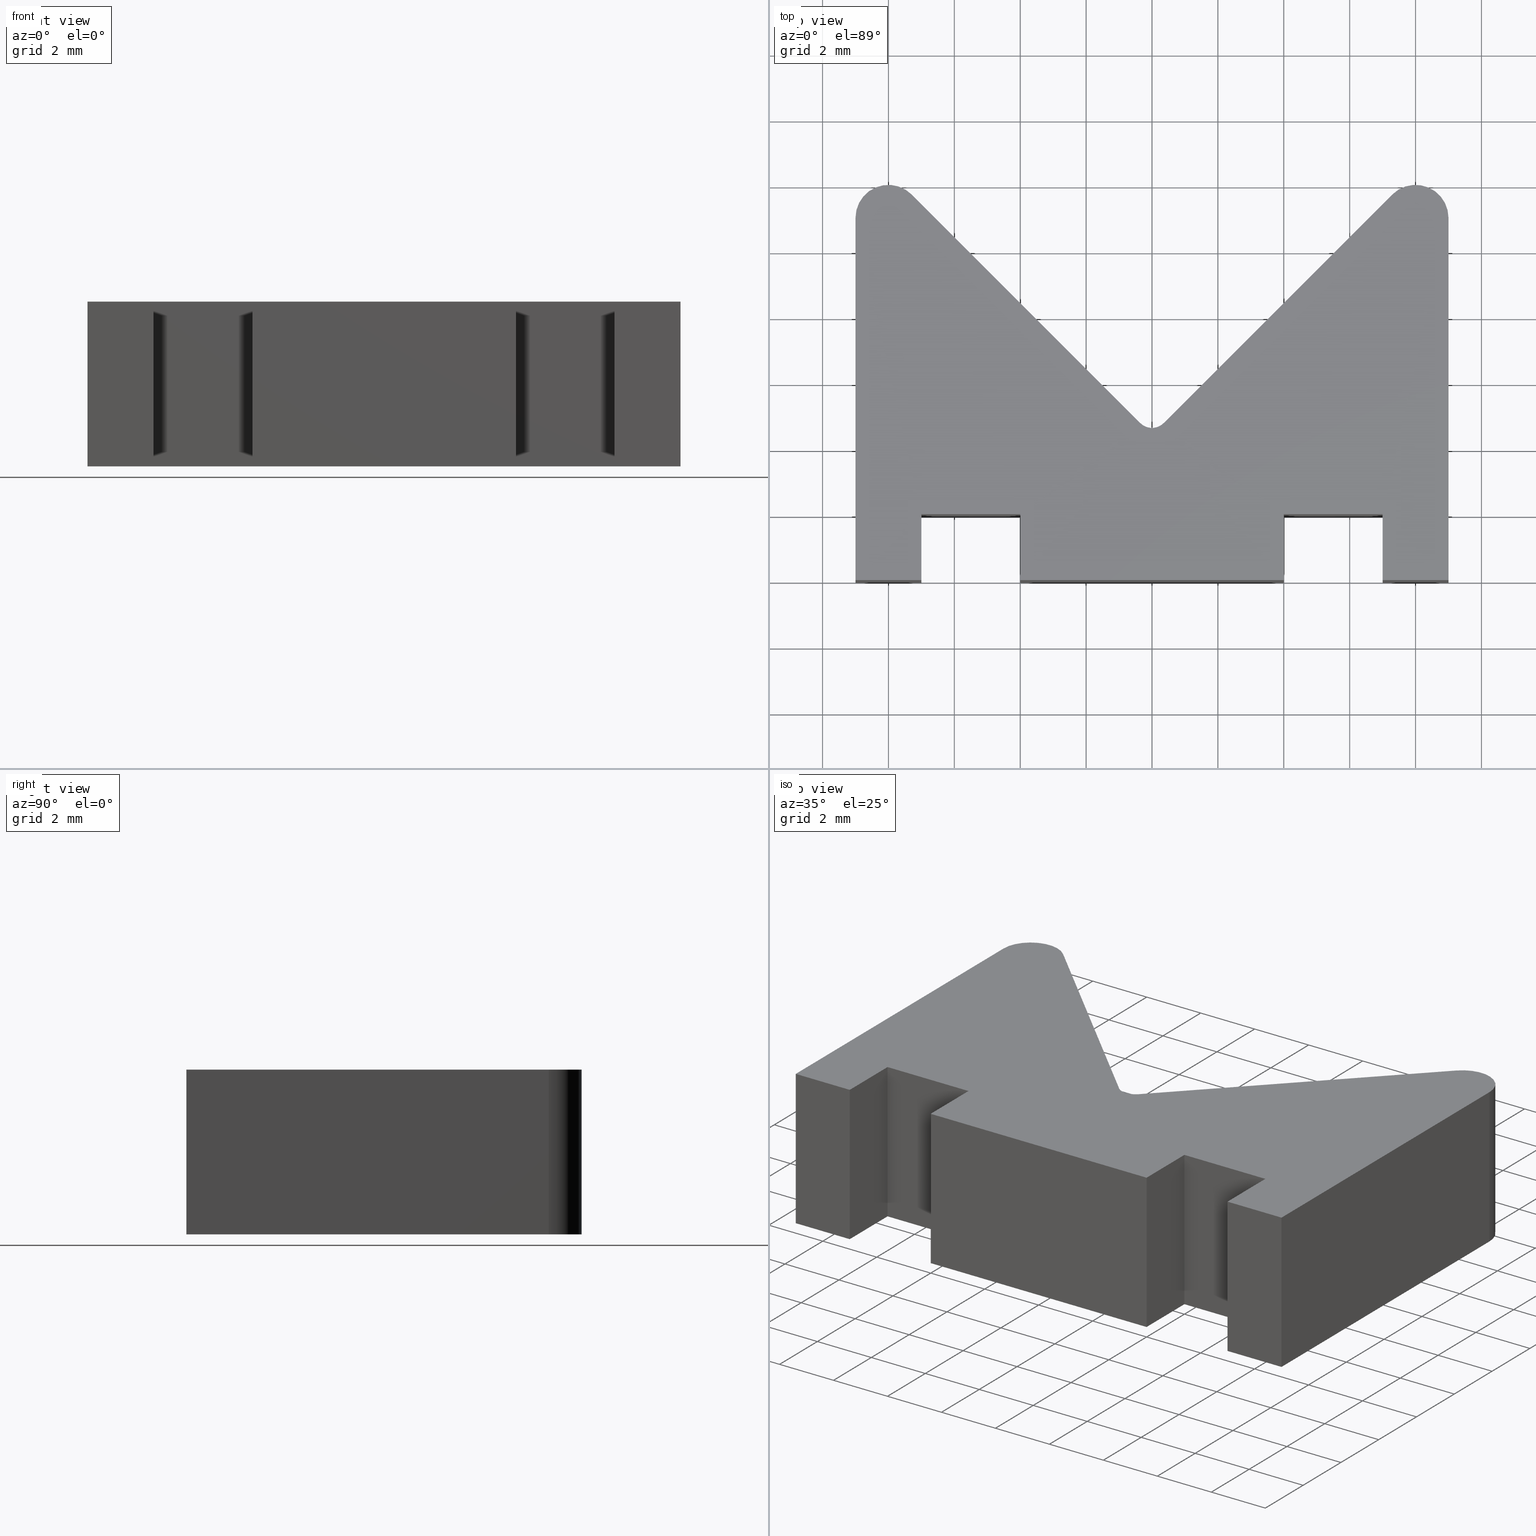
[diagram: canonical four-view strip — front | top / right | iso, engineering-drawing reading convention]
A machine part, canonical four-view strip (front | top / right | iso — engineering-drawing reading convention). The complete STEP part file that produces these views, byte-faithful:
ISO-10303-21;
HEADER;
/* Generated by software containing ST-Developer
 * from STEP Tools, Inc. (www.steptools.com) 
 */

FILE_DESCRIPTION(
/* description */ (''),
/* implementation_level */ '2;1');

FILE_NAME(
/* name */ 'E_3_01_10_18_00_WKZ-0098.stp',
/* time_stamp */ '2025-11-24T11:32:34+01:00',
/* author */ ('d.fischer'),
/* organization */ (''),
/* preprocessor_version */ 'ST-DEVELOPER v20',
/* originating_system */ 'Autodesk Inventor 2025',
/* authorisation */ '');

FILE_SCHEMA (('AUTOMOTIVE_DESIGN { 1 0 10303 214 3 1 1 }'));
ENDSEC;

DATA;
#10=MECHANICAL_DESIGN_GEOMETRIC_PRESENTATION_REPRESENTATION('',(#17,#18),
#595);
#11=SHAPE_REPRESENTATION_RELATIONSHIP('SRR','None',#602,#12);
#12=ADVANCED_BREP_SHAPE_REPRESENTATION('',(#13),#594);
#13=MANIFOLD_SOLID_BREP('Volumenk\X\F6rper1',#354);
#14=CYLINDRICAL_SURFACE('',#390,1.);
#15=CYLINDRICAL_SURFACE('',#393,0.500000000000001);
#16=CYLINDRICAL_SURFACE('',#396,1.);
#17=STYLED_ITEM('',(#612),#340);
#18=STYLED_ITEM('',(#611),#13);
#19=FACE_OUTER_BOUND('',#37,.T.);
#20=FACE_OUTER_BOUND('',#38,.T.);
#21=FACE_OUTER_BOUND('',#39,.T.);
#22=FACE_OUTER_BOUND('',#40,.T.);
#23=FACE_OUTER_BOUND('',#41,.T.);
#24=FACE_OUTER_BOUND('',#42,.T.);
#25=FACE_OUTER_BOUND('',#43,.T.);
#26=FACE_OUTER_BOUND('',#44,.T.);
#27=FACE_OUTER_BOUND('',#45,.T.);
#28=FACE_OUTER_BOUND('',#46,.T.);
#29=FACE_OUTER_BOUND('',#47,.T.);
#30=FACE_OUTER_BOUND('',#48,.T.);
#31=FACE_OUTER_BOUND('',#49,.T.);
#32=FACE_OUTER_BOUND('',#50,.T.);
#33=FACE_OUTER_BOUND('',#51,.T.);
#34=FACE_OUTER_BOUND('',#52,.T.);
#35=FACE_OUTER_BOUND('',#53,.T.);
#36=FACE_OUTER_BOUND('',#54,.T.);
#37=EDGE_LOOP('',(#225,#226,#227,#228,#229,#230,#231,#232,#233,#234,#235,
#236,#237,#238,#239,#240));
#38=EDGE_LOOP('',(#241,#242,#243,#244));
#39=EDGE_LOOP('',(#245,#246,#247,#248));
#40=EDGE_LOOP('',(#249,#250,#251,#252));
#41=EDGE_LOOP('',(#253,#254,#255,#256));
#42=EDGE_LOOP('',(#257,#258,#259,#260));
#43=EDGE_LOOP('',(#261,#262,#263,#264));
#44=EDGE_LOOP('',(#265,#266,#267,#268));
#45=EDGE_LOOP('',(#269,#270,#271,#272));
#46=EDGE_LOOP('',(#273,#274,#275,#276));
#47=EDGE_LOOP('',(#277,#278,#279,#280));
#48=EDGE_LOOP('',(#281,#282,#283,#284));
#49=EDGE_LOOP('',(#285,#286,#287,#288));
#50=EDGE_LOOP('',(#289,#290,#291,#292));
#51=EDGE_LOOP('',(#293,#294,#295,#296));
#52=EDGE_LOOP('',(#297,#298,#299,#300));
#53=EDGE_LOOP('',(#301,#302,#303,#304));
#54=EDGE_LOOP('',(#305,#306,#307,#308,#309,#310,#311,#312,#313,#314,#315,
#316,#317,#318,#319,#320));
#55=CIRCLE('',#378,1.);
#56=CIRCLE('',#379,0.500000000000001);
#57=CIRCLE('',#380,1.);
#58=CIRCLE('',#391,1.);
#59=CIRCLE('',#394,0.500000000000001);
#60=CIRCLE('',#397,1.);
#61=LINE('',#497,#103);
#62=LINE('',#499,#104);
#63=LINE('',#501,#105);
#64=LINE('',#503,#106);
#65=LINE('',#505,#107);
#66=LINE('',#507,#108);
#67=LINE('',#509,#109);
#68=LINE('',#511,#110);
#69=LINE('',#513,#111);
#70=LINE('',#515,#112);
#71=LINE('',#517,#113);
#72=LINE('',#521,#114);
#73=LINE('',#525,#115);
#74=LINE('',#530,#116);
#75=LINE('',#531,#117);
#76=LINE('',#532,#118);
#77=LINE('',#535,#119);
#78=LINE('',#536,#120);
#79=LINE('',#539,#121);
#80=LINE('',#540,#122);
#81=LINE('',#543,#123);
#82=LINE('',#544,#124);
#83=LINE('',#547,#125);
#84=LINE('',#548,#126);
#85=LINE('',#551,#127);
#86=LINE('',#552,#128);
#87=LINE('',#555,#129);
#88=LINE('',#556,#130);
#89=LINE('',#559,#131);
#90=LINE('',#560,#132);
#91=LINE('',#563,#133);
#92=LINE('',#564,#134);
#93=LINE('',#568,#135);
#94=LINE('',#571,#136);
#95=LINE('',#572,#137);
#96=LINE('',#576,#138);
#97=LINE('',#579,#139);
#98=LINE('',#580,#140);
#99=LINE('',#584,#141);
#100=LINE('',#587,#142);
#101=LINE('',#588,#143);
#102=LINE('',#590,#144);
#103=VECTOR('',#405,10.);
#104=VECTOR('',#406,10.);
#105=VECTOR('',#407,10.);
#106=VECTOR('',#408,10.);
#107=VECTOR('',#409,10.);
#108=VECTOR('',#410,10.);
#109=VECTOR('',#411,10.);
#110=VECTOR('',#412,10.);
#111=VECTOR('',#413,10.);
#112=VECTOR('',#414,10.);
#113=VECTOR('',#415,10.);
#114=VECTOR('',#418,10.);
#115=VECTOR('',#421,10.);
#116=VECTOR('',#426,10.);
#117=VECTOR('',#427,10.);
#118=VECTOR('',#428,10.);
#119=VECTOR('',#431,10.);
#120=VECTOR('',#432,10.);
#121=VECTOR('',#435,10.);
#122=VECTOR('',#436,10.);
#123=VECTOR('',#439,10.);
#124=VECTOR('',#440,10.);
#125=VECTOR('',#443,10.);
#126=VECTOR('',#444,10.);
#127=VECTOR('',#447,10.);
#128=VECTOR('',#448,10.);
#129=VECTOR('',#451,10.);
#130=VECTOR('',#452,10.);
#131=VECTOR('',#455,10.);
#132=VECTOR('',#456,10.);
#133=VECTOR('',#459,10.);
#134=VECTOR('',#460,10.);
#135=VECTOR('',#465,10.);
#136=VECTOR('',#468,10.);
#137=VECTOR('',#469,10.);
#138=VECTOR('',#474,10.);
#139=VECTOR('',#477,10.);
#140=VECTOR('',#478,10.);
#141=VECTOR('',#483,10.);
#142=VECTOR('',#486,10.);
#143=VECTOR('',#487,10.);
#144=VECTOR('',#490,10.);
#145=VERTEX_POINT('',#495);
#146=VERTEX_POINT('',#496);
#147=VERTEX_POINT('',#498);
#148=VERTEX_POINT('',#500);
#149=VERTEX_POINT('',#502);
#150=VERTEX_POINT('',#504);
#151=VERTEX_POINT('',#506);
#152=VERTEX_POINT('',#508);
#153=VERTEX_POINT('',#510);
#154=VERTEX_POINT('',#512);
#155=VERTEX_POINT('',#514);
#156=VERTEX_POINT('',#516);
#157=VERTEX_POINT('',#518);
#158=VERTEX_POINT('',#520);
#159=VERTEX_POINT('',#522);
#160=VERTEX_POINT('',#524);
#161=VERTEX_POINT('',#528);
#162=VERTEX_POINT('',#529);
#163=VERTEX_POINT('',#534);
#164=VERTEX_POINT('',#538);
#165=VERTEX_POINT('',#542);
#166=VERTEX_POINT('',#546);
#167=VERTEX_POINT('',#550);
#168=VERTEX_POINT('',#554);
#169=VERTEX_POINT('',#558);
#170=VERTEX_POINT('',#562);
#171=VERTEX_POINT('',#566);
#172=VERTEX_POINT('',#570);
#173=VERTEX_POINT('',#574);
#174=VERTEX_POINT('',#578);
#175=VERTEX_POINT('',#582);
#176=VERTEX_POINT('',#586);
#177=EDGE_CURVE('',#145,#146,#61,.T.);
#178=EDGE_CURVE('',#147,#145,#62,.T.);
#179=EDGE_CURVE('',#148,#147,#63,.T.);
#180=EDGE_CURVE('',#149,#148,#64,.T.);
#181=EDGE_CURVE('',#150,#149,#65,.T.);
#182=EDGE_CURVE('',#151,#150,#66,.T.);
#183=EDGE_CURVE('',#152,#151,#67,.T.);
#184=EDGE_CURVE('',#153,#152,#68,.T.);
#185=EDGE_CURVE('',#154,#153,#69,.T.);
#186=EDGE_CURVE('',#155,#154,#70,.T.);
#187=EDGE_CURVE('',#156,#155,#71,.T.);
#188=EDGE_CURVE('',#157,#156,#55,.T.);
#189=EDGE_CURVE('',#158,#157,#72,.T.);
#190=EDGE_CURVE('',#159,#158,#56,.T.);
#191=EDGE_CURVE('',#160,#159,#73,.T.);
#192=EDGE_CURVE('',#146,#160,#57,.T.);
#193=EDGE_CURVE('',#161,#162,#74,.T.);
#194=EDGE_CURVE('',#162,#148,#75,.T.);
#195=EDGE_CURVE('',#161,#147,#76,.T.);
#196=EDGE_CURVE('',#162,#163,#77,.T.);
#197=EDGE_CURVE('',#163,#149,#78,.T.);
#198=EDGE_CURVE('',#163,#164,#79,.T.);
#199=EDGE_CURVE('',#164,#150,#80,.T.);
#200=EDGE_CURVE('',#164,#165,#81,.T.);
#201=EDGE_CURVE('',#165,#151,#82,.T.);
#202=EDGE_CURVE('',#165,#166,#83,.T.);
#203=EDGE_CURVE('',#166,#152,#84,.T.);
#204=EDGE_CURVE('',#166,#167,#85,.T.);
#205=EDGE_CURVE('',#167,#153,#86,.T.);
#206=EDGE_CURVE('',#167,#168,#87,.T.);
#207=EDGE_CURVE('',#168,#154,#88,.T.);
#208=EDGE_CURVE('',#168,#169,#89,.T.);
#209=EDGE_CURVE('',#169,#155,#90,.T.);
#210=EDGE_CURVE('',#169,#170,#91,.T.);
#211=EDGE_CURVE('',#170,#156,#92,.T.);
#212=EDGE_CURVE('',#170,#171,#58,.T.);
#213=EDGE_CURVE('',#171,#157,#93,.T.);
#214=EDGE_CURVE('',#171,#172,#94,.T.);
#215=EDGE_CURVE('',#172,#158,#95,.T.);
#216=EDGE_CURVE('',#172,#173,#59,.T.);
#217=EDGE_CURVE('',#173,#159,#96,.T.);
#218=EDGE_CURVE('',#173,#174,#97,.T.);
#219=EDGE_CURVE('',#174,#160,#98,.T.);
#220=EDGE_CURVE('',#174,#175,#60,.T.);
#221=EDGE_CURVE('',#175,#146,#99,.T.);
#222=EDGE_CURVE('',#175,#176,#100,.T.);
#223=EDGE_CURVE('',#145,#176,#101,.T.);
#224=EDGE_CURVE('',#176,#161,#102,.T.);
#225=ORIENTED_EDGE('',*,*,#177,.F.);
#226=ORIENTED_EDGE('',*,*,#178,.F.);
#227=ORIENTED_EDGE('',*,*,#179,.F.);
#228=ORIENTED_EDGE('',*,*,#180,.F.);
#229=ORIENTED_EDGE('',*,*,#181,.F.);
#230=ORIENTED_EDGE('',*,*,#182,.F.);
#231=ORIENTED_EDGE('',*,*,#183,.F.);
#232=ORIENTED_EDGE('',*,*,#184,.F.);
#233=ORIENTED_EDGE('',*,*,#185,.F.);
#234=ORIENTED_EDGE('',*,*,#186,.F.);
#235=ORIENTED_EDGE('',*,*,#187,.F.);
#236=ORIENTED_EDGE('',*,*,#188,.F.);
#237=ORIENTED_EDGE('',*,*,#189,.F.);
#238=ORIENTED_EDGE('',*,*,#190,.F.);
#239=ORIENTED_EDGE('',*,*,#191,.F.);
#240=ORIENTED_EDGE('',*,*,#192,.F.);
#241=ORIENTED_EDGE('',*,*,#193,.T.);
#242=ORIENTED_EDGE('',*,*,#194,.T.);
#243=ORIENTED_EDGE('',*,*,#179,.T.);
#244=ORIENTED_EDGE('',*,*,#195,.F.);
#245=ORIENTED_EDGE('',*,*,#196,.T.);
#246=ORIENTED_EDGE('',*,*,#197,.T.);
#247=ORIENTED_EDGE('',*,*,#180,.T.);
#248=ORIENTED_EDGE('',*,*,#194,.F.);
#249=ORIENTED_EDGE('',*,*,#198,.T.);
#250=ORIENTED_EDGE('',*,*,#199,.T.);
#251=ORIENTED_EDGE('',*,*,#181,.T.);
#252=ORIENTED_EDGE('',*,*,#197,.F.);
#253=ORIENTED_EDGE('',*,*,#200,.T.);
#254=ORIENTED_EDGE('',*,*,#201,.T.);
#255=ORIENTED_EDGE('',*,*,#182,.T.);
#256=ORIENTED_EDGE('',*,*,#199,.F.);
#257=ORIENTED_EDGE('',*,*,#202,.T.);
#258=ORIENTED_EDGE('',*,*,#203,.T.);
#259=ORIENTED_EDGE('',*,*,#183,.T.);
#260=ORIENTED_EDGE('',*,*,#201,.F.);
#261=ORIENTED_EDGE('',*,*,#204,.T.);
#262=ORIENTED_EDGE('',*,*,#205,.T.);
#263=ORIENTED_EDGE('',*,*,#184,.T.);
#264=ORIENTED_EDGE('',*,*,#203,.F.);
#265=ORIENTED_EDGE('',*,*,#206,.T.);
#266=ORIENTED_EDGE('',*,*,#207,.T.);
#267=ORIENTED_EDGE('',*,*,#185,.T.);
#268=ORIENTED_EDGE('',*,*,#205,.F.);
#269=ORIENTED_EDGE('',*,*,#208,.T.);
#270=ORIENTED_EDGE('',*,*,#209,.T.);
#271=ORIENTED_EDGE('',*,*,#186,.T.);
#272=ORIENTED_EDGE('',*,*,#207,.F.);
#273=ORIENTED_EDGE('',*,*,#210,.T.);
#274=ORIENTED_EDGE('',*,*,#211,.T.);
#275=ORIENTED_EDGE('',*,*,#187,.T.);
#276=ORIENTED_EDGE('',*,*,#209,.F.);
#277=ORIENTED_EDGE('',*,*,#212,.T.);
#278=ORIENTED_EDGE('',*,*,#213,.T.);
#279=ORIENTED_EDGE('',*,*,#188,.T.);
#280=ORIENTED_EDGE('',*,*,#211,.F.);
#281=ORIENTED_EDGE('',*,*,#214,.T.);
#282=ORIENTED_EDGE('',*,*,#215,.T.);
#283=ORIENTED_EDGE('',*,*,#189,.T.);
#284=ORIENTED_EDGE('',*,*,#213,.F.);
#285=ORIENTED_EDGE('',*,*,#216,.T.);
#286=ORIENTED_EDGE('',*,*,#217,.T.);
#287=ORIENTED_EDGE('',*,*,#190,.T.);
#288=ORIENTED_EDGE('',*,*,#215,.F.);
#289=ORIENTED_EDGE('',*,*,#218,.T.);
#290=ORIENTED_EDGE('',*,*,#219,.T.);
#291=ORIENTED_EDGE('',*,*,#191,.T.);
#292=ORIENTED_EDGE('',*,*,#217,.F.);
#293=ORIENTED_EDGE('',*,*,#220,.T.);
#294=ORIENTED_EDGE('',*,*,#221,.T.);
#295=ORIENTED_EDGE('',*,*,#192,.T.);
#296=ORIENTED_EDGE('',*,*,#219,.F.);
#297=ORIENTED_EDGE('',*,*,#222,.T.);
#298=ORIENTED_EDGE('',*,*,#223,.F.);
#299=ORIENTED_EDGE('',*,*,#177,.T.);
#300=ORIENTED_EDGE('',*,*,#221,.F.);
#301=ORIENTED_EDGE('',*,*,#224,.T.);
#302=ORIENTED_EDGE('',*,*,#195,.T.);
#303=ORIENTED_EDGE('',*,*,#178,.T.);
#304=ORIENTED_EDGE('',*,*,#223,.T.);
#305=ORIENTED_EDGE('',*,*,#193,.F.);
#306=ORIENTED_EDGE('',*,*,#224,.F.);
#307=ORIENTED_EDGE('',*,*,#222,.F.);
#308=ORIENTED_EDGE('',*,*,#220,.F.);
#309=ORIENTED_EDGE('',*,*,#218,.F.);
#310=ORIENTED_EDGE('',*,*,#216,.F.);
#311=ORIENTED_EDGE('',*,*,#214,.F.);
#312=ORIENTED_EDGE('',*,*,#212,.F.);
#313=ORIENTED_EDGE('',*,*,#210,.F.);
#314=ORIENTED_EDGE('',*,*,#208,.F.);
#315=ORIENTED_EDGE('',*,*,#206,.F.);
#316=ORIENTED_EDGE('',*,*,#204,.F.);
#317=ORIENTED_EDGE('',*,*,#202,.F.);
#318=ORIENTED_EDGE('',*,*,#200,.F.);
#319=ORIENTED_EDGE('',*,*,#198,.F.);
#320=ORIENTED_EDGE('',*,*,#196,.F.);
#321=PLANE('',#377);
#322=PLANE('',#381);
#323=PLANE('',#382);
#324=PLANE('',#383);
#325=PLANE('',#384);
#326=PLANE('',#385);
#327=PLANE('',#386);
#328=PLANE('',#387);
#329=PLANE('',#388);
#330=PLANE('',#389);
#331=PLANE('',#392);
#332=PLANE('',#395);
#333=PLANE('',#398);
#334=PLANE('',#399);
#335=PLANE('',#400);
#336=ADVANCED_FACE('',(#19),#321,.F.);
#337=ADVANCED_FACE('',(#20),#322,.T.);
#338=ADVANCED_FACE('',(#21),#323,.T.);
#339=ADVANCED_FACE('',(#22),#324,.T.);
#340=ADVANCED_FACE('',(#23),#325,.T.);
#341=ADVANCED_FACE('',(#24),#326,.T.);
#342=ADVANCED_FACE('',(#25),#327,.T.);
#343=ADVANCED_FACE('',(#26),#328,.T.);
#344=ADVANCED_FACE('',(#27),#329,.T.);
#345=ADVANCED_FACE('',(#28),#330,.T.);
#346=ADVANCED_FACE('',(#29),#14,.T.);
#347=ADVANCED_FACE('',(#30),#331,.T.);
#348=ADVANCED_FACE('',(#31),#15,.F.);
#349=ADVANCED_FACE('',(#32),#332,.T.);
#350=ADVANCED_FACE('',(#33),#16,.T.);
#351=ADVANCED_FACE('',(#34),#333,.T.);
#352=ADVANCED_FACE('',(#35),#334,.T.);
#353=ADVANCED_FACE('',(#36),#335,.T.);
#354=CLOSED_SHELL('',(#336,#337,#338,#339,#340,#341,#342,#343,#344,#345,
#346,#347,#348,#349,#350,#351,#352,#353));
#355=DERIVED_UNIT_ELEMENT(#358,1.);
#356=DERIVED_UNIT_ELEMENT(#597,-3.);
#357=DIMENSIONAL_EXPONENTS(0.,1.,0.,0.,0.,0.,0.);
#358=(
CONVERSION_BASED_UNIT('gram',#360)
MASS_UNIT()
NAMED_UNIT(#357)
);
#359=(
MASS_UNIT()
NAMED_UNIT(*)
SI_UNIT(.KILO.,.GRAM.)
);
#360=MASS_MEASURE_WITH_UNIT(MASS_MEASURE(0.001),#359);
#361=DERIVED_UNIT((#355,#356));
#362=MEASURE_REPRESENTATION_ITEM('density measure',
POSITIVE_RATIO_MEASURE(8.03),#361);
#363=PROPERTY_DEFINITION_REPRESENTATION(#368,#365);
#364=PROPERTY_DEFINITION_REPRESENTATION(#369,#366);
#365=REPRESENTATION('material name',(#367),#594);
#366=REPRESENTATION('density',(#362),#594);
#367=DESCRIPTIVE_REPRESENTATION_ITEM('1.4301','1.4301');
#368=PROPERTY_DEFINITION('material property','material name',#604);
#369=PROPERTY_DEFINITION('material property','density of part',#604);
#370=DATE_TIME_ROLE('creation_date');
#371=APPLIED_DATE_AND_TIME_ASSIGNMENT(#372,#370,(#604));
#372=DATE_AND_TIME(#373,#374);
#373=CALENDAR_DATE(2011,20,10);
#374=LOCAL_TIME(0,0,0.,#375);
#375=COORDINATED_UNIVERSAL_TIME_OFFSET(0,0,.BEHIND.);
#376=AXIS2_PLACEMENT_3D('',#493,#401,#402);
#377=AXIS2_PLACEMENT_3D('',#494,#403,#404);
#378=AXIS2_PLACEMENT_3D('',#519,#416,#417);
#379=AXIS2_PLACEMENT_3D('',#523,#419,#420);
#380=AXIS2_PLACEMENT_3D('',#526,#422,#423);
#381=AXIS2_PLACEMENT_3D('',#527,#424,#425);
#382=AXIS2_PLACEMENT_3D('',#533,#429,#430);
#383=AXIS2_PLACEMENT_3D('',#537,#433,#434);
#384=AXIS2_PLACEMENT_3D('',#541,#437,#438);
#385=AXIS2_PLACEMENT_3D('',#545,#441,#442);
#386=AXIS2_PLACEMENT_3D('',#549,#445,#446);
#387=AXIS2_PLACEMENT_3D('',#553,#449,#450);
#388=AXIS2_PLACEMENT_3D('',#557,#453,#454);
#389=AXIS2_PLACEMENT_3D('',#561,#457,#458);
#390=AXIS2_PLACEMENT_3D('',#565,#461,#462);
#391=AXIS2_PLACEMENT_3D('',#567,#463,#464);
#392=AXIS2_PLACEMENT_3D('',#569,#466,#467);
#393=AXIS2_PLACEMENT_3D('',#573,#470,#471);
#394=AXIS2_PLACEMENT_3D('',#575,#472,#473);
#395=AXIS2_PLACEMENT_3D('',#577,#475,#476);
#396=AXIS2_PLACEMENT_3D('',#581,#479,#480);
#397=AXIS2_PLACEMENT_3D('',#583,#481,#482);
#398=AXIS2_PLACEMENT_3D('',#585,#484,#485);
#399=AXIS2_PLACEMENT_3D('',#589,#488,#489);
#400=AXIS2_PLACEMENT_3D('',#591,#491,#492);
#401=DIRECTION('axis',(0.,0.,1.));
#402=DIRECTION('refdir',(1.,0.,0.));
#403=DIRECTION('center_axis',(0.,0.,1.));
#404=DIRECTION('ref_axis',(1.,0.,0.));
#405=DIRECTION('',(0.,1.,0.));
#406=DIRECTION('',(1.,0.,0.));
#407=DIRECTION('',(0.,-1.,0.));
#408=DIRECTION('',(1.,0.,0.));
#409=DIRECTION('',(0.,1.,0.));
#410=DIRECTION('',(1.,0.,0.));
#411=DIRECTION('',(0.,-1.,0.));
#412=DIRECTION('',(1.,0.,0.));
#413=DIRECTION('',(0.,1.,0.));
#414=DIRECTION('',(1.,0.,0.));
#415=DIRECTION('',(0.,-1.,0.));
#416=DIRECTION('center_axis',(0.,0.,1.));
#417=DIRECTION('ref_axis',(-0.707106781186548,-0.707106781186548,0.));
#418=DIRECTION('',(-0.707106781186547,0.707106781186548,0.));
#419=DIRECTION('center_axis',(0.,0.,-1.));
#420=DIRECTION('ref_axis',(-0.707106781186547,-0.707106781186548,0.));
#421=DIRECTION('',(-0.707106781186547,-0.707106781186548,0.));
#422=DIRECTION('center_axis',(0.,0.,1.));
#423=DIRECTION('ref_axis',(-1.,0.,0.));
#424=DIRECTION('center_axis',(-1.,0.,0.));
#425=DIRECTION('ref_axis',(0.,0.,1.));
#426=DIRECTION('',(0.,1.,0.));
#427=DIRECTION('',(0.,0.,-1.));
#428=DIRECTION('',(0.,0.,-1.));
#429=DIRECTION('center_axis',(0.,-1.,0.));
#430=DIRECTION('ref_axis',(0.,0.,-1.));
#431=DIRECTION('',(-1.,0.,0.));
#432=DIRECTION('',(0.,0.,-1.));
#433=DIRECTION('center_axis',(1.,0.,0.));
#434=DIRECTION('ref_axis',(0.,0.,-1.));
#435=DIRECTION('',(0.,-1.,0.));
#436=DIRECTION('',(0.,0.,-1.));
#437=DIRECTION('center_axis',(0.,-1.,0.));
#438=DIRECTION('ref_axis',(0.,0.,-1.));
#439=DIRECTION('',(-1.,0.,0.));
#440=DIRECTION('',(0.,0.,-1.));
#441=DIRECTION('center_axis',(-1.,0.,0.));
#442=DIRECTION('ref_axis',(0.,0.,1.));
#443=DIRECTION('',(0.,1.,0.));
#444=DIRECTION('',(0.,0.,-1.));
#445=DIRECTION('center_axis',(0.,-1.,0.));
#446=DIRECTION('ref_axis',(0.,0.,-1.));
#447=DIRECTION('',(-1.,0.,0.));
#448=DIRECTION('',(0.,0.,-1.));
#449=DIRECTION('center_axis',(1.,0.,0.));
#450=DIRECTION('ref_axis',(0.,0.,-1.));
#451=DIRECTION('',(0.,-1.,0.));
#452=DIRECTION('',(0.,0.,-1.));
#453=DIRECTION('center_axis',(0.,-1.,0.));
#454=DIRECTION('ref_axis',(0.,0.,-1.));
#455=DIRECTION('',(-1.,0.,0.));
#456=DIRECTION('',(0.,0.,-1.));
#457=DIRECTION('center_axis',(-1.,0.,0.));
#458=DIRECTION('ref_axis',(0.,0.,1.));
#459=DIRECTION('',(0.,1.,0.));
#460=DIRECTION('',(0.,0.,-1.));
#461=DIRECTION('center_axis',(0.,0.,1.));
#462=DIRECTION('ref_axis',(-0.707106781186548,-0.707106781186548,0.));
#463=DIRECTION('center_axis',(0.,0.,-1.));
#464=DIRECTION('ref_axis',(-0.707106781186548,-0.707106781186548,0.));
#465=DIRECTION('',(0.,0.,-1.));
#466=DIRECTION('center_axis',(0.707106781186548,0.707106781186547,0.));
#467=DIRECTION('ref_axis',(0.,0.,-1.));
#468=DIRECTION('',(0.707106781186547,-0.707106781186548,0.));
#469=DIRECTION('',(0.,0.,-1.));
#470=DIRECTION('center_axis',(0.,0.,1.));
#471=DIRECTION('ref_axis',(-0.707106781186547,-0.707106781186548,0.));
#472=DIRECTION('center_axis',(0.,0.,1.));
#473=DIRECTION('ref_axis',(-0.707106781186547,-0.707106781186548,0.));
#474=DIRECTION('',(0.,0.,-1.));
#475=DIRECTION('center_axis',(-0.707106781186548,0.707106781186547,0.));
#476=DIRECTION('ref_axis',(0.,0.,1.));
#477=DIRECTION('',(0.707106781186547,0.707106781186548,0.));
#478=DIRECTION('',(0.,0.,-1.));
#479=DIRECTION('center_axis',(0.,0.,1.));
#480=DIRECTION('ref_axis',(-1.,0.,0.));
#481=DIRECTION('center_axis',(0.,0.,-1.));
#482=DIRECTION('ref_axis',(-1.,0.,0.));
#483=DIRECTION('',(0.,0.,-1.));
#484=DIRECTION('center_axis',(1.,0.,0.));
#485=DIRECTION('ref_axis',(0.,0.,-1.));
#486=DIRECTION('',(0.,-1.,0.));
#487=DIRECTION('',(0.,0.,1.));
#488=DIRECTION('center_axis',(0.,-1.,0.));
#489=DIRECTION('ref_axis',(0.,0.,-1.));
#490=DIRECTION('',(-1.,0.,0.));
#491=DIRECTION('center_axis',(0.,0.,1.));
#492=DIRECTION('ref_axis',(1.,0.,0.));
#493=CARTESIAN_POINT('',(0.,0.,0.));
#494=CARTESIAN_POINT('Origin',(-2.77555756156289E-16,2.9426609055108,-2.5));
#495=CARTESIAN_POINT('',(9.,-2.,-2.5));
#496=CARTESIAN_POINT('',(9.,9.,-2.5));
#497=CARTESIAN_POINT('',(9.,9.,-2.5));
#498=CARTESIAN_POINT('',(7.,-2.,-2.5));
#499=CARTESIAN_POINT('',(9.,-2.,-2.5));
#500=CARTESIAN_POINT('',(7.,0.,-2.5));
#501=CARTESIAN_POINT('',(7.,-2.,-2.5));
#502=CARTESIAN_POINT('',(4.,0.,-2.5));
#503=CARTESIAN_POINT('',(7.,0.,-2.5));
#504=CARTESIAN_POINT('',(4.,-2.,-2.5));
#505=CARTESIAN_POINT('',(4.,0.,-2.5));
#506=CARTESIAN_POINT('',(-4.,-2.,-2.5));
#507=CARTESIAN_POINT('',(4.,-2.,-2.5));
#508=CARTESIAN_POINT('',(-4.,0.,-2.5));
#509=CARTESIAN_POINT('',(-4.,-2.,-2.5));
#510=CARTESIAN_POINT('',(-7.,0.,-2.5));
#511=CARTESIAN_POINT('',(-4.,0.,-2.5));
#512=CARTESIAN_POINT('',(-7.,-2.,-2.5));
#513=CARTESIAN_POINT('',(-7.,0.,-2.5));
#514=CARTESIAN_POINT('',(-9.,-2.,-2.5));
#515=CARTESIAN_POINT('',(-7.,-2.,-2.5));
#516=CARTESIAN_POINT('',(-9.,9.,-2.5));
#517=CARTESIAN_POINT('',(-9.,-2.,-2.5));
#518=CARTESIAN_POINT('',(-7.29289321881345,9.70710678118655,-2.5));
#519=CARTESIAN_POINT('Origin',(-8.,9.,-2.5));
#520=CARTESIAN_POINT('',(-0.353553390593275,2.76776695296637,-2.5));
#521=CARTESIAN_POINT('',(-7.29289321881345,9.70710678118655,-2.5));
#522=CARTESIAN_POINT('',(0.353553390593275,2.76776695296637,-2.5));
#523=CARTESIAN_POINT('Origin',(0.,3.12132034355965,-2.5));
#524=CARTESIAN_POINT('',(7.29289321881345,9.70710678118655,-2.5));
#525=CARTESIAN_POINT('',(0.353553390593275,2.76776695296637,-2.5));
#526=CARTESIAN_POINT('Origin',(8.,9.,-2.5));
#527=CARTESIAN_POINT('Origin',(7.,-2.,0.));
#528=CARTESIAN_POINT('',(7.,-2.,2.5));
#529=CARTESIAN_POINT('',(7.,0.,2.5));
#530=CARTESIAN_POINT('',(7.,-2.,2.5));
#531=CARTESIAN_POINT('',(7.,0.,0.));
#532=CARTESIAN_POINT('',(7.,-2.,0.));
#533=CARTESIAN_POINT('Origin',(7.,0.,0.));
#534=CARTESIAN_POINT('',(4.,0.,2.5));
#535=CARTESIAN_POINT('',(7.,0.,2.5));
#536=CARTESIAN_POINT('',(4.,0.,0.));
#537=CARTESIAN_POINT('Origin',(4.,0.,0.));
#538=CARTESIAN_POINT('',(4.,-2.,2.5));
#539=CARTESIAN_POINT('',(4.,0.,2.5));
#540=CARTESIAN_POINT('',(4.,-2.,0.));
#541=CARTESIAN_POINT('Origin',(4.,-2.,0.));
#542=CARTESIAN_POINT('',(-4.,-2.,2.5));
#543=CARTESIAN_POINT('',(4.,-2.,2.5));
#544=CARTESIAN_POINT('',(-4.,-2.,0.));
#545=CARTESIAN_POINT('Origin',(-4.,-2.,0.));
#546=CARTESIAN_POINT('',(-4.,0.,2.5));
#547=CARTESIAN_POINT('',(-4.,-2.,2.5));
#548=CARTESIAN_POINT('',(-4.,0.,0.));
#549=CARTESIAN_POINT('Origin',(-4.,0.,0.));
#550=CARTESIAN_POINT('',(-7.,0.,2.5));
#551=CARTESIAN_POINT('',(-4.,0.,2.5));
#552=CARTESIAN_POINT('',(-7.,0.,0.));
#553=CARTESIAN_POINT('Origin',(-7.,0.,0.));
#554=CARTESIAN_POINT('',(-7.,-2.,2.5));
#555=CARTESIAN_POINT('',(-7.,0.,2.5));
#556=CARTESIAN_POINT('',(-7.,-2.,0.));
#557=CARTESIAN_POINT('Origin',(-7.,-2.,0.));
#558=CARTESIAN_POINT('',(-9.,-2.,2.5));
#559=CARTESIAN_POINT('',(-7.,-2.,2.5));
#560=CARTESIAN_POINT('',(-9.,-2.,0.));
#561=CARTESIAN_POINT('Origin',(-9.,-2.,0.));
#562=CARTESIAN_POINT('',(-9.,9.,2.5));
#563=CARTESIAN_POINT('',(-9.,-2.,2.5));
#564=CARTESIAN_POINT('',(-9.,9.,0.));
#565=CARTESIAN_POINT('Origin',(-8.,9.,0.));
#566=CARTESIAN_POINT('',(-7.29289321881345,9.70710678118655,2.5));
#567=CARTESIAN_POINT('Origin',(-8.,9.,2.5));
#568=CARTESIAN_POINT('',(-7.29289321881345,9.70710678118655,0.));
#569=CARTESIAN_POINT('Origin',(-7.29289321881345,9.70710678118655,0.));
#570=CARTESIAN_POINT('',(-0.353553390593275,2.76776695296637,2.5));
#571=CARTESIAN_POINT('',(-7.29289321881345,9.70710678118655,2.5));
#572=CARTESIAN_POINT('',(-0.353553390593275,2.76776695296637,0.));
#573=CARTESIAN_POINT('Origin',(0.,3.12132034355965,0.));
#574=CARTESIAN_POINT('',(0.353553390593275,2.76776695296637,2.5));
#575=CARTESIAN_POINT('Origin',(0.,3.12132034355965,2.5));
#576=CARTESIAN_POINT('',(0.353553390593275,2.76776695296637,0.));
#577=CARTESIAN_POINT('Origin',(0.353553390593275,2.76776695296637,0.));
#578=CARTESIAN_POINT('',(7.29289321881345,9.70710678118655,2.5));
#579=CARTESIAN_POINT('',(0.353553390593275,2.76776695296637,2.5));
#580=CARTESIAN_POINT('',(7.29289321881345,9.70710678118655,0.));
#581=CARTESIAN_POINT('Origin',(8.,9.,0.));
#582=CARTESIAN_POINT('',(9.,9.,2.5));
#583=CARTESIAN_POINT('Origin',(8.,9.,2.5));
#584=CARTESIAN_POINT('',(9.,9.,0.));
#585=CARTESIAN_POINT('Origin',(9.,9.,0.));
#586=CARTESIAN_POINT('',(9.,-2.,2.5));
#587=CARTESIAN_POINT('',(9.,9.,2.5));
#588=CARTESIAN_POINT('',(9.,-2.,0.));
#589=CARTESIAN_POINT('Origin',(9.,-2.,0.));
#590=CARTESIAN_POINT('',(9.,-2.,2.5));
#591=CARTESIAN_POINT('Origin',(-4.5102810375397E-16,2.9426609055108,2.5));
#592=UNCERTAINTY_MEASURE_WITH_UNIT(LENGTH_MEASURE(0.01),#596,
'DISTANCE_ACCURACY_VALUE',
'Maximum model space distance between geometric entities at asserted c
onnectivities');
#593=UNCERTAINTY_MEASURE_WITH_UNIT(LENGTH_MEASURE(0.01),#596,
'DISTANCE_ACCURACY_VALUE',
'Maximum model space distance between geometric entities at asserted c
onnectivities');
#594=(
GEOMETRIC_REPRESENTATION_CONTEXT(3)
GLOBAL_UNCERTAINTY_ASSIGNED_CONTEXT((#592))
GLOBAL_UNIT_ASSIGNED_CONTEXT((#596,#598,#599))
REPRESENTATION_CONTEXT('','3D')
);
#595=(
GEOMETRIC_REPRESENTATION_CONTEXT(3)
GLOBAL_UNCERTAINTY_ASSIGNED_CONTEXT((#593))
GLOBAL_UNIT_ASSIGNED_CONTEXT((#596,#598,#599))
REPRESENTATION_CONTEXT('','3D')
);
#596=(
LENGTH_UNIT()
NAMED_UNIT(*)
SI_UNIT(.MILLI.,.METRE.)
);
#597=(
LENGTH_UNIT()
NAMED_UNIT(*)
SI_UNIT(.CENTI.,.METRE.)
);
#598=(
NAMED_UNIT(*)
PLANE_ANGLE_UNIT()
SI_UNIT($,.RADIAN.)
);
#599=(
NAMED_UNIT(*)
SI_UNIT($,.STERADIAN.)
SOLID_ANGLE_UNIT()
);
#600=SHAPE_DEFINITION_REPRESENTATION(#601,#602);
#601=PRODUCT_DEFINITION_SHAPE('',$,#604);
#602=SHAPE_REPRESENTATION('',(#376),#594);
#603=PRODUCT_DEFINITION_CONTEXT('part definition',#608,'design');
#604=PRODUCT_DEFINITION('WKZ-0098','E_3_01_10_18_00_WKZ-0098',#605,#603);
#605=PRODUCT_DEFINITION_FORMATION('',$,#610);
#606=PRODUCT_RELATED_PRODUCT_CATEGORY('E_3_01_10_18_00_WKZ-0098',
'E_3_01_10_18_00_WKZ-0098',(#610));
#607=APPLICATION_PROTOCOL_DEFINITION('international standard',
'automotive_design',2009,#608);
#608=APPLICATION_CONTEXT(
'Core Data for Automotive Mechanical Design Process');
#609=PRODUCT_CONTEXT('part definition',#608,'mechanical');
#610=PRODUCT('WKZ-0098','E_3_01_10_18_00_WKZ-0098',$,(#609));
#611=PRESENTATION_STYLE_ASSIGNMENT((#613));
#612=PRESENTATION_STYLE_ASSIGNMENT((#614));
#613=SURFACE_STYLE_USAGE(.BOTH.,#617);
#614=SURFACE_STYLE_USAGE(.BOTH.,#618);
#615=SURFACE_STYLE_RENDERING_WITH_PROPERTIES($,#625,(#616));
#616=SURFACE_STYLE_TRANSPARENT(0.);
#617=SURFACE_SIDE_STYLE('',(#619,#615));
#618=SURFACE_SIDE_STYLE('',(#620));
#619=SURFACE_STYLE_FILL_AREA(#621);
#620=SURFACE_STYLE_FILL_AREA(#622);
#621=FILL_AREA_STYLE('',(#623));
#622=FILL_AREA_STYLE('',(#624));
#623=FILL_AREA_STYLE_COLOUR('',#625);
#624=FILL_AREA_STYLE_COLOUR('',#626);
#625=COLOUR_RGB('',0.92156862745098,0.92156862745098,0.92156862745098);
#626=COLOUR_RGB('',0.16078431372549,0.16078431372549,0.16078431372549);
ENDSEC;
END-ISO-10303-21;
